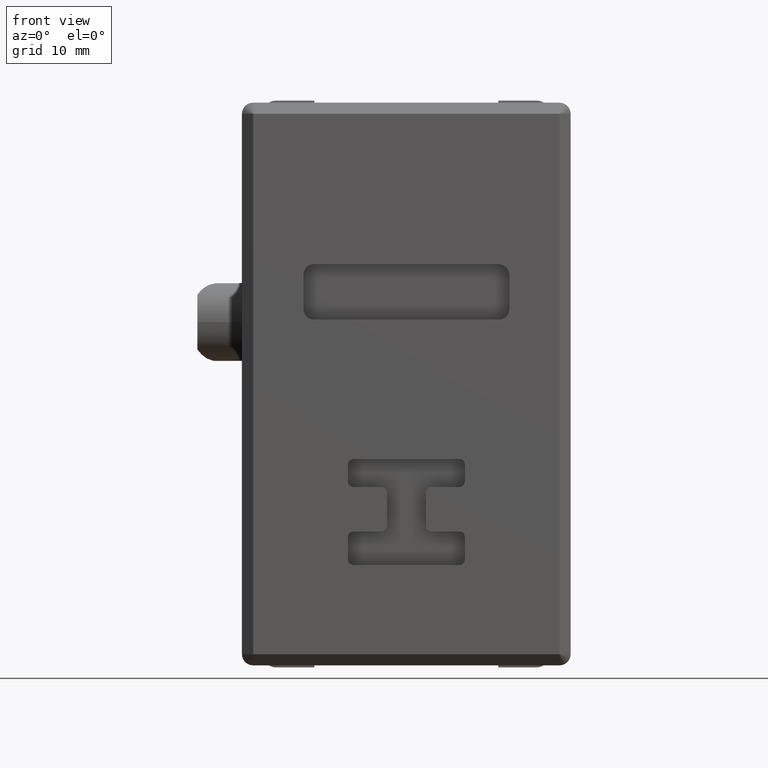
[diagram: clean part render]
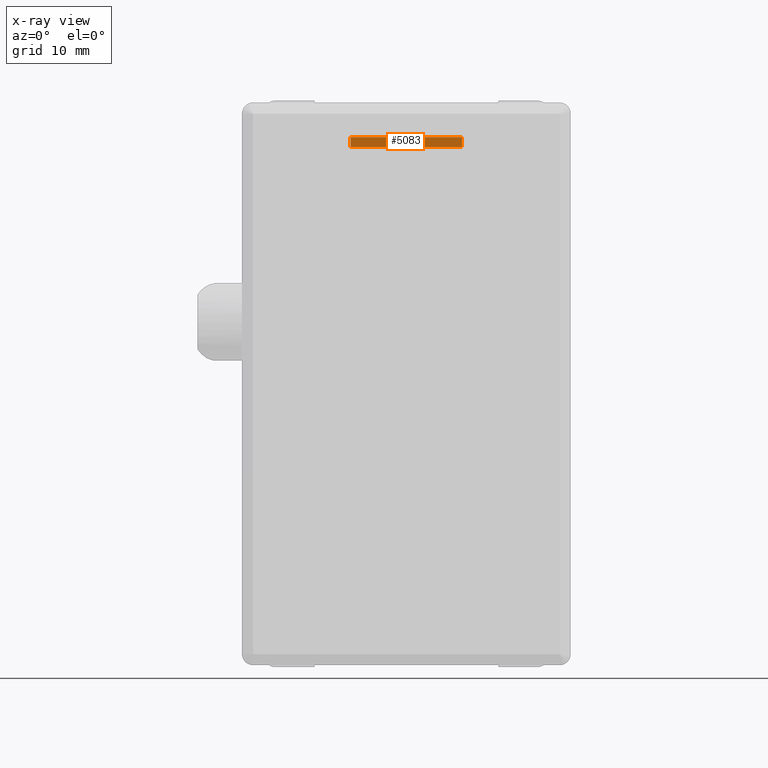
[diagram: x-ray — body ghosted, one internal face saturated and labeled with its STEP entity id]
A machine part, front view, then the same camera in x-ray: the body is ghosted and one INTERNAL B-rep face — a face not visible from any outside direction — is saturated and labeled: STEP entity #5083.
In plain terms, the highlighted planar face has unit normal (0, -1, -0).
Its self-contained STEP definition (entity closure, byte-faithful):
#25 = ORIENTED_EDGE ( 'NONE', *, *, #4645, .T. ) ;
#43 = FACE_OUTER_BOUND ( 'NONE', #2720, .T. ) ;
#93 = CARTESIAN_POINT ( 'NONE',  ( -4.999999999999830400, 18.50000000002334800, -6.479192182746300500E-012 ) ) ;
#689 = EDGE_CURVE ( 'NONE', #5558, #2151, #3073, .T. ) ;
#716 = CARTESIAN_POINT ( 'NONE',  ( 995.0000000000000000, 18.50000000000049700, 21.14999999998120100 ) ) ;
#1069 = CARTESIAN_POINT ( 'NONE',  ( 4.999999999995449900, 18.49999999999940300, 22.14999999998100200 ) ) ;
#1156 = CARTESIAN_POINT ( 'NONE',  ( -4.999999999999779700, 18.49999999999940300, 22.14999999998100200 ) ) ;
#1243 = VECTOR ( 'NONE', #4082, 1000.000000000000000 ) ;
#1303 = VERTEX_POINT ( 'NONE', #4395 ) ;
#1429 = VECTOR ( 'NONE', #1884, 1000.000000000000000 ) ;
#1647 = ORIENTED_EDGE ( 'NONE', *, *, #1677, .T. ) ;
#1677 = EDGE_CURVE ( 'NONE', #1303, #2422, #3607, .T. ) ;
#1884 = DIRECTION ( 'NONE',  ( -1.000000000000000000, 0.0000000000000000000, 0.0000000000000000000 ) ) ;
#2151 = VERTEX_POINT ( 'NONE', #1156 ) ;
#2268 = DIRECTION ( 'NONE',  ( 0.0000000000000000000, 1.079865363795774100E-012, -1.000000000000000000 ) ) ;
#2422 = VERTEX_POINT ( 'NONE', #5999 ) ;
#2720 = EDGE_LOOP ( 'NONE', ( #3983, #1647, #25, #4952 ) ) ;
#3073 = LINE ( 'NONE', #3403, #1429 ) ;
#3300 = VECTOR ( 'NONE', #4191, 1000.000000000000000 ) ;
#3403 = CARTESIAN_POINT ( 'NONE',  ( 995.0000000000000000, 18.49999999999940300, 22.14999999998100200 ) ) ;
#3471 = LINE ( 'NONE', #5229, #3300 ) ;
#3564 = CARTESIAN_POINT ( 'NONE',  ( 995.0000000000000000, 18.50000000000039800, 21.24999999999674900 ) ) ;
#3607 = LINE ( 'NONE', #3564, #1243 ) ;
#3895 = AXIS2_PLACEMENT_3D ( 'NONE', #716, #5305, #2268 ) ;
#3983 = ORIENTED_EDGE ( 'NONE', *, *, #6326, .F. ) ;
#4082 = DIRECTION ( 'NONE',  ( -1.000000000000000000, -3.496766555278740200E-027, 3.238150488490015200E-015 ) ) ;
#4191 = DIRECTION ( 'NONE',  ( 0.0000000000000000000, -1.079865363795774100E-012, 1.000000000000000000 ) ) ;
#4395 = CARTESIAN_POINT ( 'NONE',  ( 4.999999999999830400, 18.50000000000000000, 21.25000000000000000 ) ) ;
#4645 = EDGE_CURVE ( 'NONE', #2422, #2151, #6465, .T. ) ;
#4653 = DIRECTION ( 'NONE',  ( 0.0000000000000000000, -1.079865363795774100E-012, 1.000000000000000000 ) ) ;
#4793 = PLANE ( 'NONE',  #3895 ) ;
#4952 = ORIENTED_EDGE ( 'NONE', *, *, #689, .F. ) ;
#5083 = ADVANCED_FACE ( 'NONE', ( #43 ), #4793, .F. ) ;
#5122 = VECTOR ( 'NONE', #4653, 1000.000000000000000 ) ;
#5229 = CARTESIAN_POINT ( 'NONE',  ( 4.999999999995449900, 18.50000000002334800, -6.479192182746300500E-012 ) ) ;
#5305 = DIRECTION ( 'NONE',  ( 0.0000000000000000000, -1.000000000000000000, -1.079865363795774100E-012 ) ) ;
#5558 = VERTEX_POINT ( 'NONE', #1069 ) ;
#5999 = CARTESIAN_POINT ( 'NONE',  ( -4.999999999999830400, 18.50000000000000000, 21.25000000000000000 ) ) ;
#6326 = EDGE_CURVE ( 'NONE', #1303, #5558, #3471, .T. ) ;
#6465 = LINE ( 'NONE', #93, #5122 ) ;